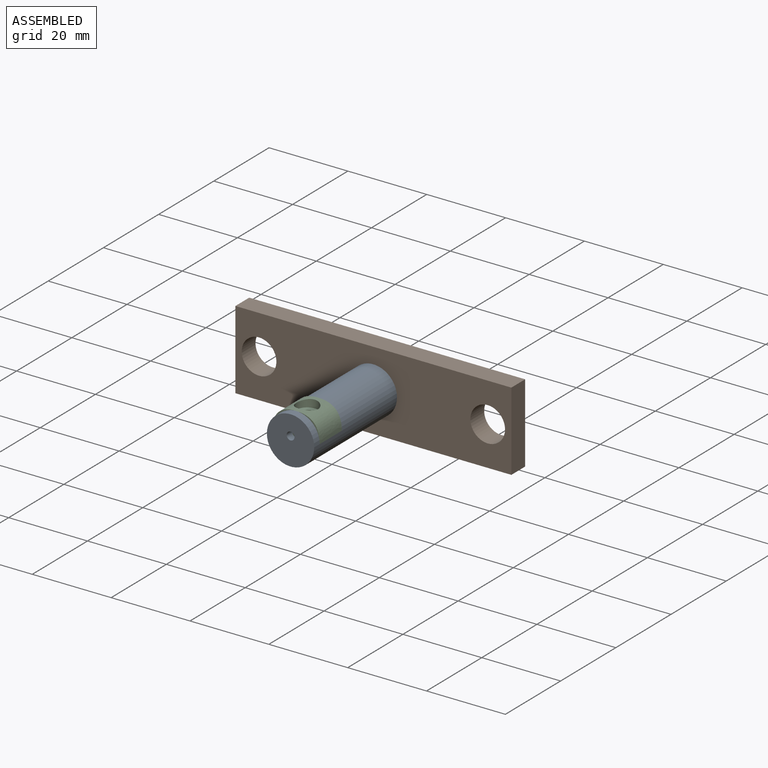
[diagram: assembled view]
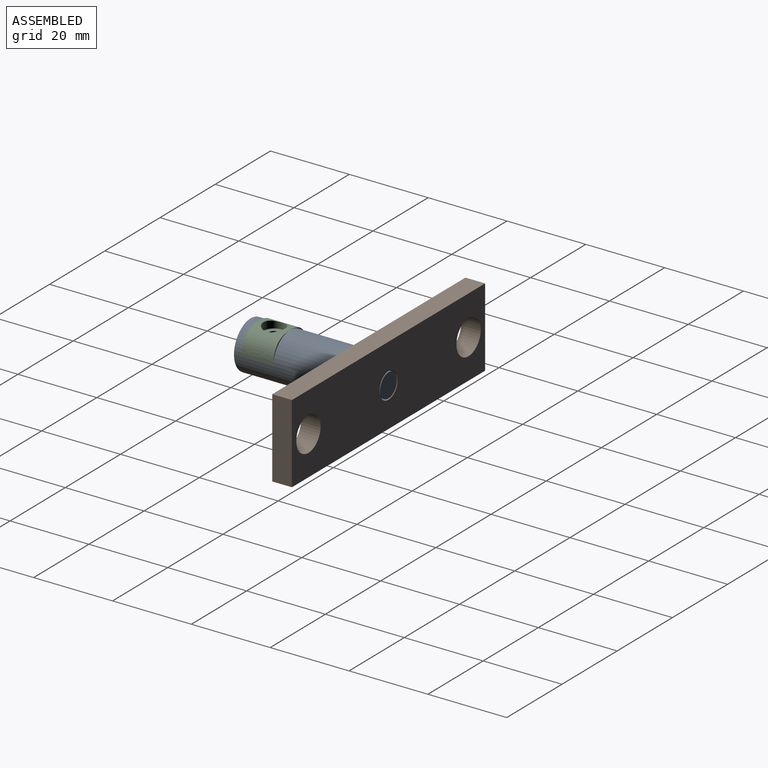
[diagram: assembled view, second angle]
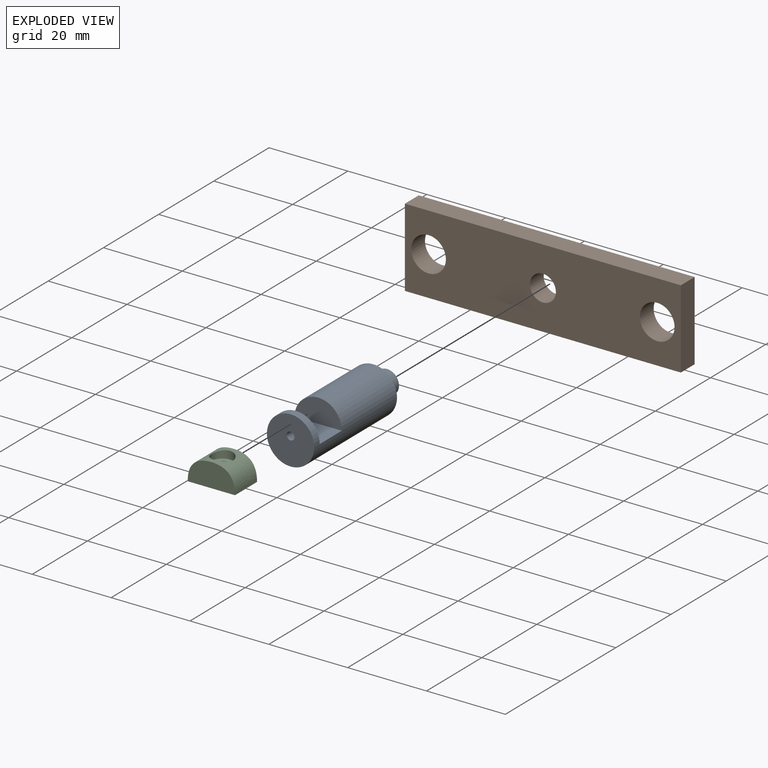
[diagram: exploded view]
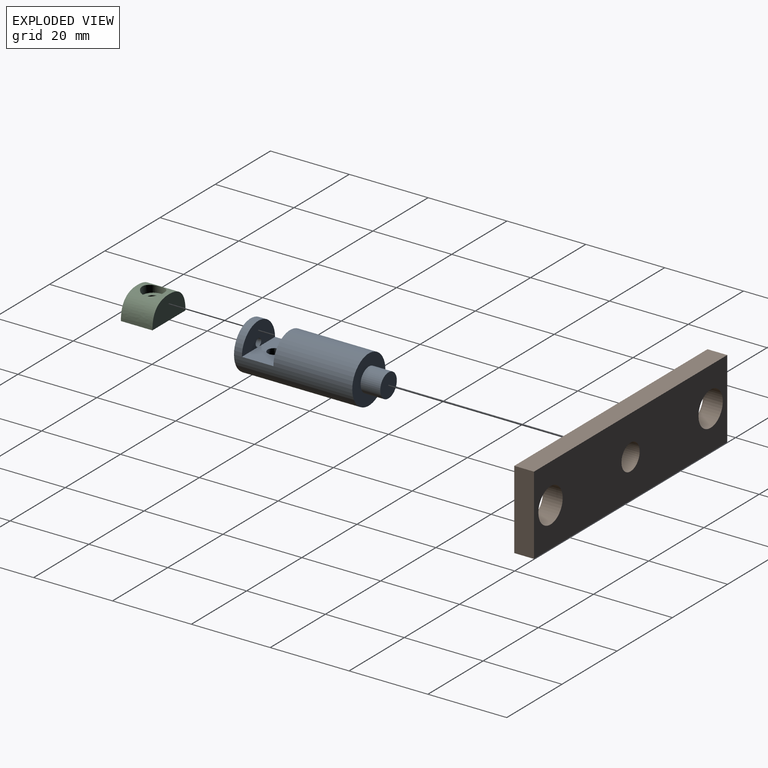
[diagram: exploded view, second angle]
ASSEMBLY  parts=3 mates=2
PART A: 10 faces, bbox 12x35x12 mm
  f0: cylinder r=6mm len=30mm, axis (0,1,0), area 971.5mm2, adj f1,f2,f3,f4,f5,f9
  f1: plane 12x8mm, normal (0,0,1), area 87.4mm2, adj f0,f2,f5,f9
  f2: plane 12x6mm, normal (0,-1,0), area 56.5mm2, adj f0,f1
  f3: plane 12x12mm, normal (0,1,0), area 84.8mm2, adj f0,f7
  f4: plane 12x12mm, normal (0,-1,0), area 110mm2, adj f0,f6
  f5: plane 12x6mm, normal (0,1,0), area 53.4mm2, adj f0,f1,f6
  f6: cylinder r=1mm len=2mm, axis (0,-1,0), area 12.6mm2, adj f4,f5
  f7: cylinder r=3mm len=6mm, axis (0,-1,0), area 94.2mm2, adj f3,f8
  f8: plane 6x6mm, normal (0,1,0), area 28.3mm2, adj f7
  f9: cylinder r=1.65mm len=6mm, axis (0,0,1), area 61mm2, adj f0,f1
PART B: 9 faces, bbox 70x5x20 mm
  f0: plane 20x5mm, normal (-1,0,0), area 100mm2, adj f1,f3,f4,f5
  f1: plane 70x5mm, normal (0,0,-1), area 350mm2, adj f0,f2,f4,f5
  f2: plane 20x5mm, normal (1,0,0), area 100mm2, adj f1,f3,f4,f5
  f3: plane 70x5mm, normal (0,0,1), area 350mm2, adj f0,f2,f4,f5
  f4: plane 70x20mm, normal (0,-1,0), area 1244.1mm2, adj f0,f1,f2,f3,f6,f7,f8
  f5: plane 70x20mm, normal (0,1,0), area 1244.1mm2, adj f0,f1,f2,f3,f6,f7,f8
  f6: cylinder r=4.4mm len=8.8mm, axis (0,-1,0), area 138.2mm2, adj f4,f5
  f7: cylinder r=4.4mm len=8.8mm, axis (0,-1,0), area 138.2mm2, adj f4,f5
  f8: cylinder r=3.3mm len=6.6mm, axis (0,1,0), area 103.7mm2, adj f4,f5
PART C: 8 faces, bbox 12x8.8x6 mm
  f0: bspline ~8.8x6mm, area 65.9mm2, adj f1,f2,f3,f4,f7
  f1: bspline ~8.8x6mm, area 65.9mm2, adj f0,f2,f3,f4,f7
  f2: plane 12x6mm, normal (0,1,0), area 60mm2, adj f0,f1,f4
  f3: plane 12x6mm, normal (0,-1,0), area 60mm2, adj f0,f1,f4
  f4: plane 12x8mm, normal (0,0,-1), area 88.9mm2, adj f0,f1,f2,f3,f5
  f5: cylinder r=1.5mm len=4mm, axis (0,0,-1), area 37.7mm2, adj f4,f6
  f6: plane 5.5x5.5mm, normal (0,0,1), area 16.7mm2, adj f5,f7
  f7: cylinder r=2.75mm len=5.5mm, axis (0,0,-1), area 31.1mm2, adj f0,f1,f6
PLACE A t=(0,-5,0)mm
PLACE B at identity
PLACE C t=(-6,-33,0)mm
MATE planar C.f3 <-> A.f5  axis (0,-1,0) through (0,-33,2.64)mm
MATE planar A.f0 <-> B.f8  axis (0,1,0) through (0,0,0)mm
